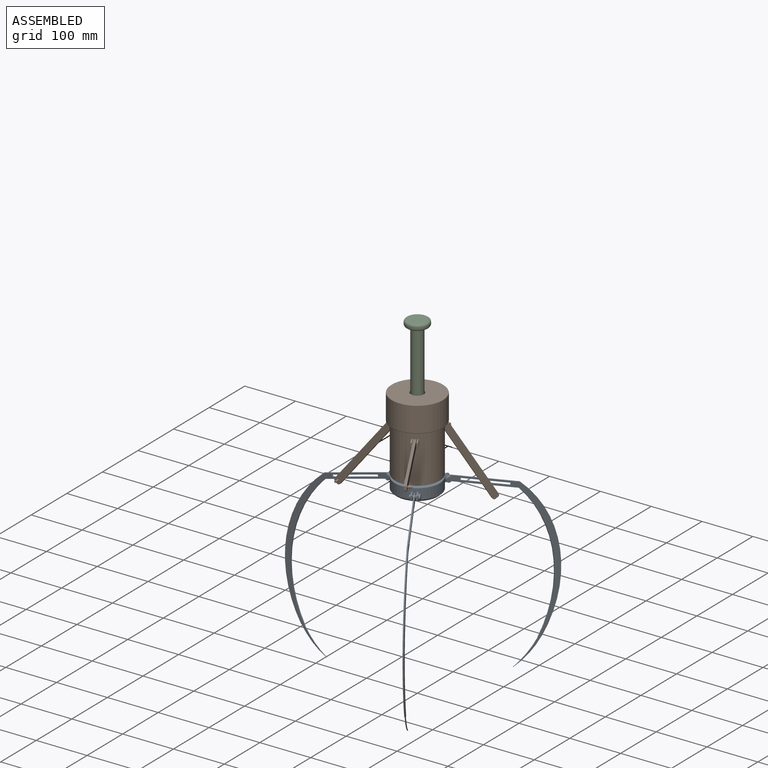
[diagram: assembled view]
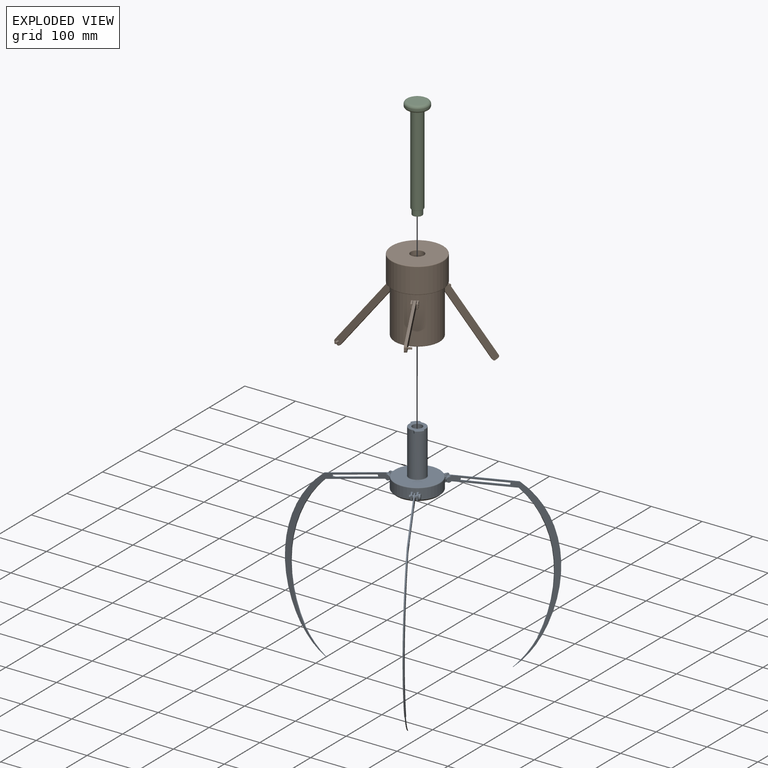
[diagram: exploded view]
GUIDED TOUR — MATED ASSEMBLY WITH SUBASSEMBLIES (Onshape document 1697e7c4b68ad2f61e49e5d9, AutoMate assembly 1697e7c4b68ad2f61e49e5d9_fa7799d7f39c444295d4dd53_c29609ae4eb9703df183e290_default)

This assembly has 15 component occurrences arranged in 3 top-level units: 1 individual components plus 2 subassemblies (S0, S1). The tour has two levels: first the top level, where each subassembly is treated as one rigid unit; then each subassembly is toured internally in its own section (nesting deeper than one subassembly level is flattened into its subassembly's section).

Components are labeled P0..P14 across the whole record; subassembly units are labeled S0..S1. A mate is a constraint between two units; its type names the relative motion it leaves free:
  FASTENED — locks the two components together rigidly (no relative motion),
  REVOLUTE — leaves rotation about the listed axis free (a hinge),
  SLIDER — leaves translation along the listed axis free.
Axis/direction vectors are unit vectors and 'through' points are millimeter coordinates, both in the assembly's world frame.

TOP-LEVEL MATES (between units; each subassembly's internal mates are listed in its own section)
  1. FASTENED "Fastened 1": P11 <-> S0, direction (0.000, 0.000, -1.000) through (0.00, 0.00, -21.27) mm
  2. SLIDER "Slider 1": S0 <-> S1, axis (0.000, 0.000, -1.000) through (0.00, 0.00, -53.98) mm

TOP-LEVEL ASSEMBLY ORDER
  1. S0 — the base component [order heuristic]
  2. S1 — core [order heuristic]
  3. P11 [order verified]
(P11 verified with a relaxed clearance tolerance: the source model stores slight part interference there.)
Order-tag legend:
  [order verified] — this step's position reverses a verified removal order: the component was checked to insert without passing through the ones already placed.
  [order heuristic] — the first 2 components form the assembly's core: parts whose collision-free extraction could not be verified, listed in mate-graph order.

Of the 15 component occurrences, 1 carries the full construction recipe — the FeatureScript program that regenerates the part's solid from scratch; the rest are supplied as boundary geometry only. Each toured unit is shown spotlighted twice — assembled, then exploded with a leader line back to its socket (green = recipe-attached component, orange = geometry-only, blue = subassembly unit; the rest desaturated gray).
NOTE — this tour is split across 2 documents so each fits a 32k-token context. This is document 1: the component sections continue in the remaining 1 document, each repeating the header above.
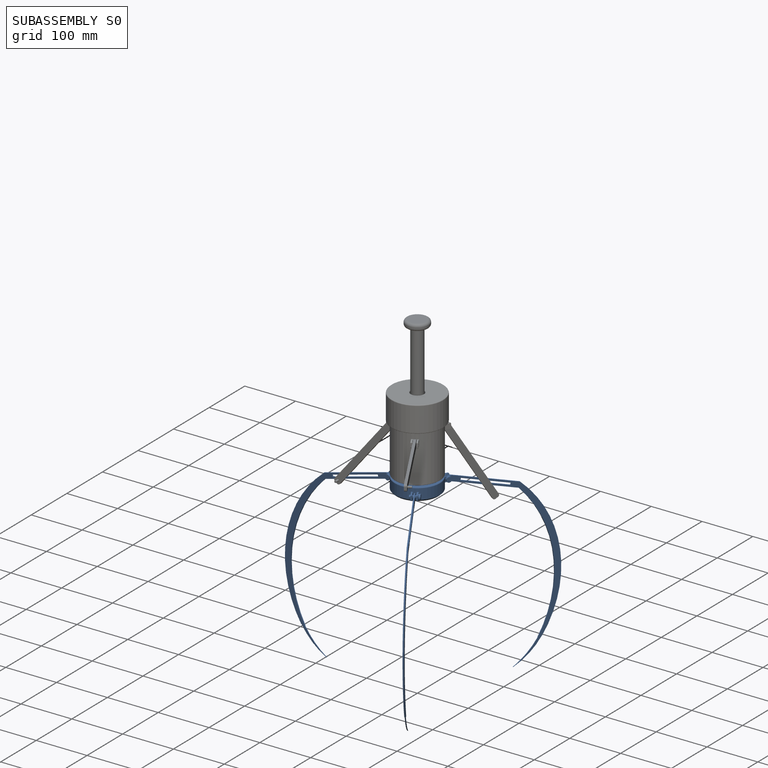
[diagram: subassembly S0 — assembled]
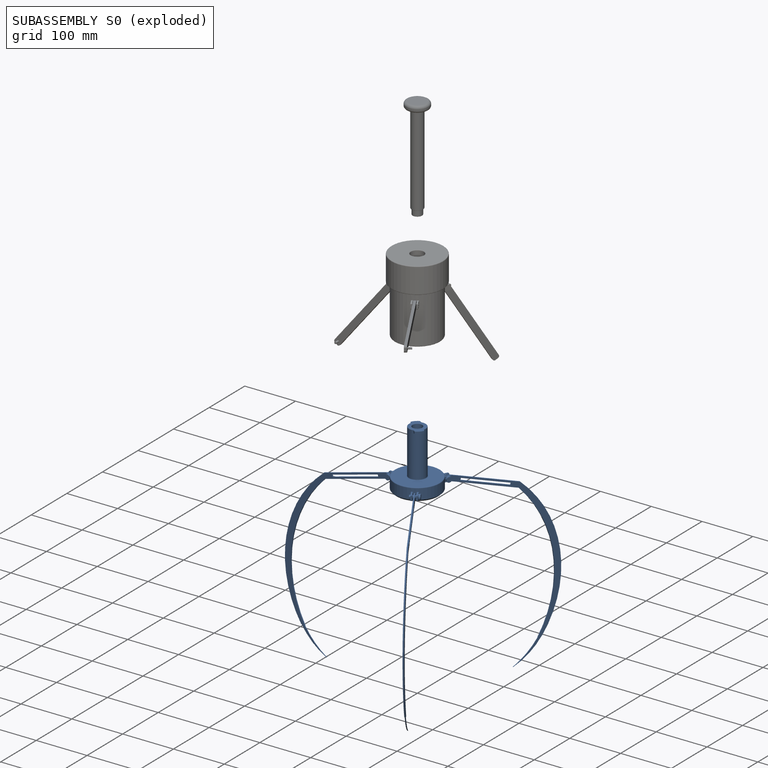
[diagram: subassembly S0 — exploded]
SUBASSEMBLY S0 — 7 components (P0, P2, P3, P4, P6, P8, P13), of which 0 recipe-attached; toured below.
Held by: FASTENED mate "Fastened 1" to P11; SLIDER mate "Slider 1" to S1.
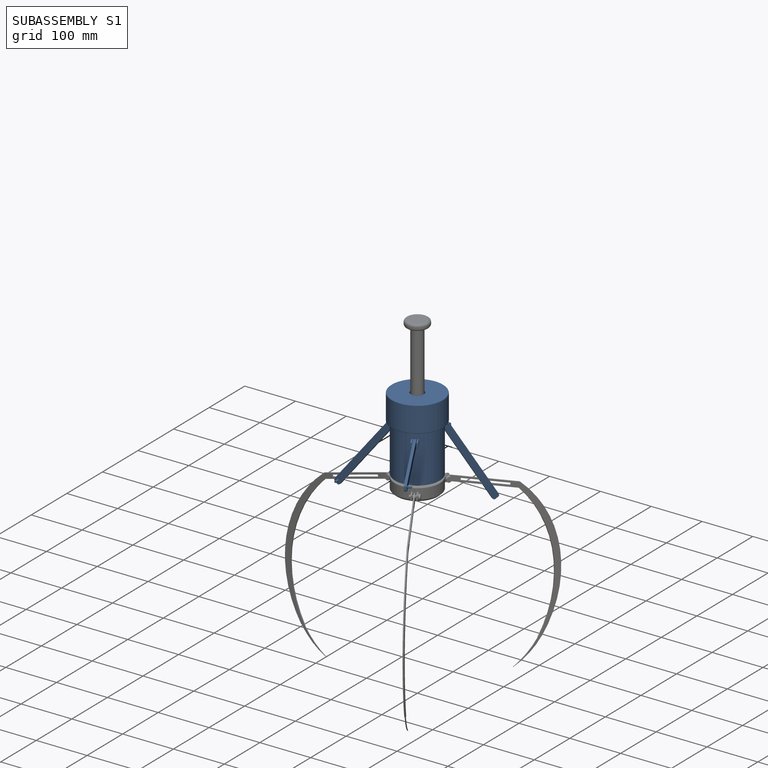
[diagram: subassembly S1 — assembled]
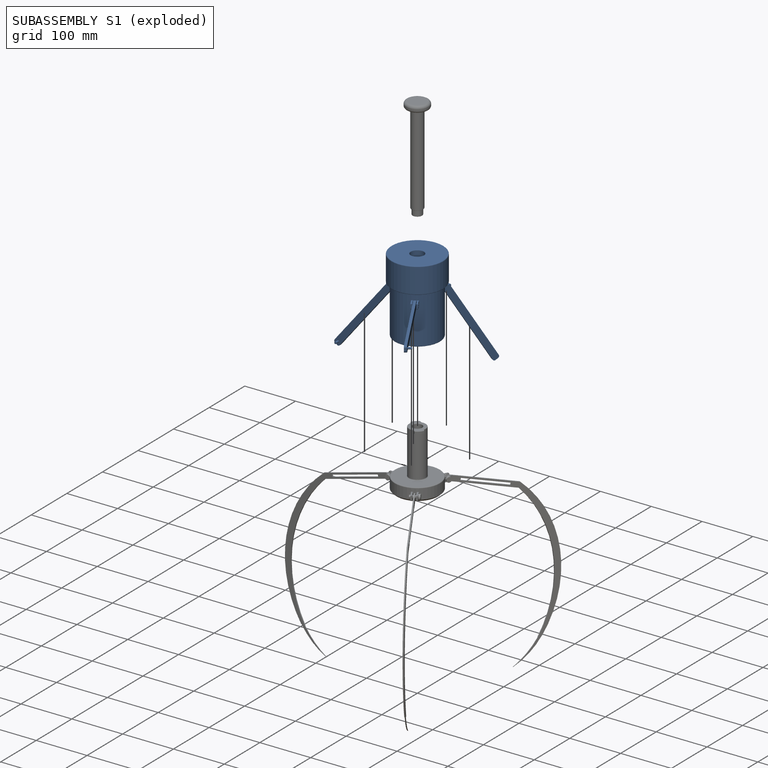
[diagram: subassembly S1 — exploded]
SUBASSEMBLY S1 — 7 components (P1, P5, P7, P9, P10, P12, P14), of which 0 recipe-attached; toured below.
Held by: SLIDER mate "Slider 1" to S0.
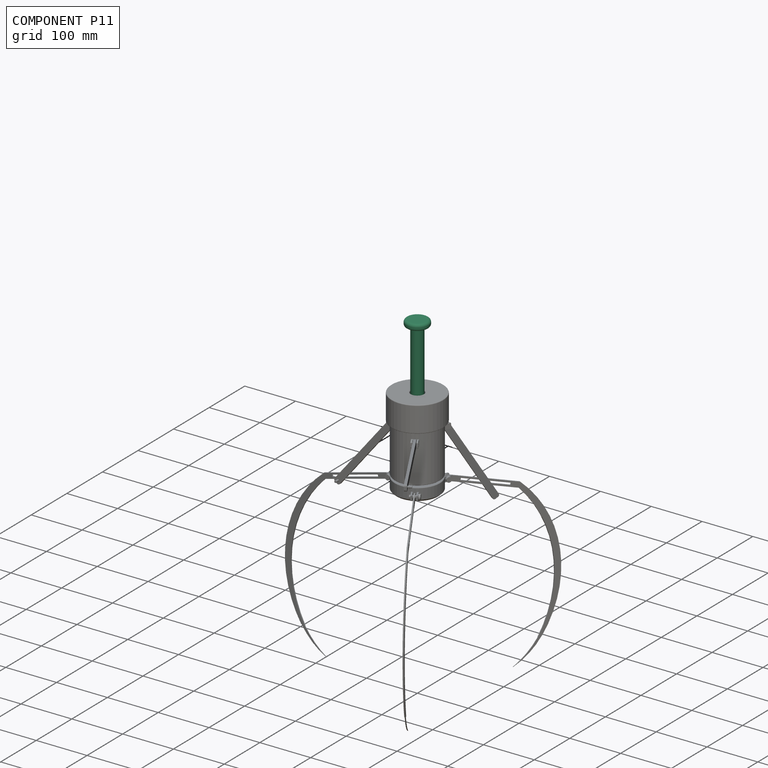
[diagram: component P11 — assembled]
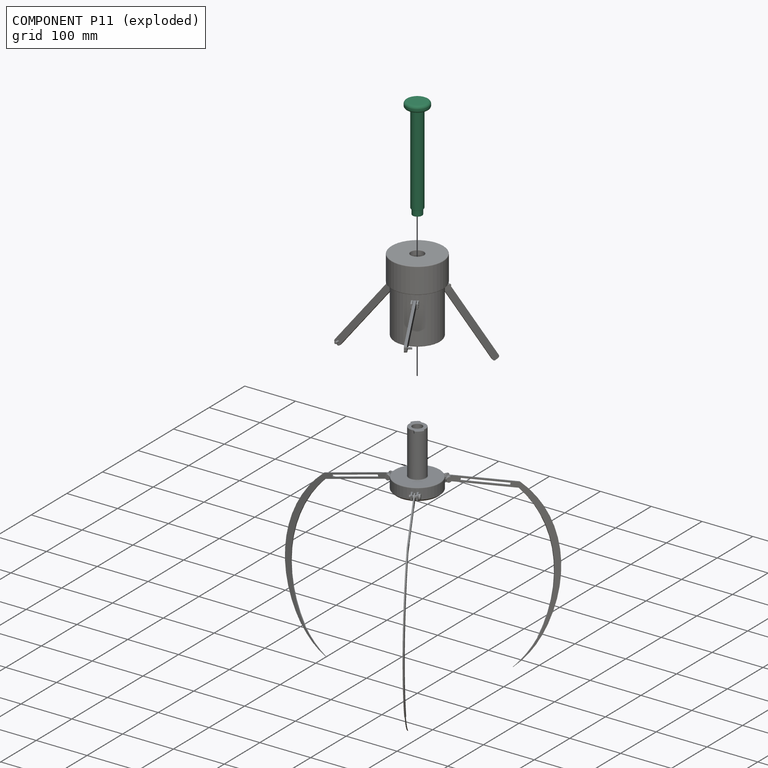
[diagram: component P11 — exploded]
COMPONENT P11 — recipe-attached (CADFS 00822589, mesh-verified: the recipe's output STEP matches this component's geometry to below the mesh-comparison resolution (tessellation chordal tolerance ~0.317 mm)).
Held by: FASTENED mate "Fastened 1" to P0.
Construction recipe (FeatureScript — the CAD program that rebuilds this solid; sketch coordinates are in the units given by the * unit suffixes, e.g. mm):

FeatureScript 1511;
import(path : "onshape/std/geometry.fs", version : "1511.0");
import(path : "onshape/std/common.fs", version : "1511.0");
const mm = millimeter;
const VERTEX = EntityType.VERTEX;
const EDGE = EntityType.EDGE;
const FACE = EntityType.FACE;
const BODY = EntityType.BODY;
function v(x, y){return vector(x, y);}
function OD(order){return orderDisambiguation(order);}
function OSD(set){return originalSetDisambiguation(set);}
function TD(topology){return topologyDisambiguation(topology);}
function TDD(query){return trueDependencyDisambiguation(query);}
function sQuery(a, b, c) {return sketchEntityQuery(a, b, c);}

annotation { "Feature Type Name" : "Feature", "Feature Type Description" : "" }
export const myFeature = defineFeature(function(context is Context, id is Id, definition is map)
    precondition{}
    {
        {
            var Q0;
            Q0=qCreatedBy(makeId("Top.planeOp"),FACE);
            var sketch = newSketch(context, id + "F0", { "sketchPlane" : qUnion([Q0])});
            skCircle(sketch, "E0", {"center": v(0, 0) * mm, "radius": 9.53 * mm});
            skSolve(sketch);
        }
        {
            var Q0;
            Q0 = qSketchRegion(id + "F0", true);
            extrude(context, id + "F1", {"entities" : qUnion([Q0]), "depth" : 11.43 * mm, "offsetDistance" : 25.4 * mm});
        }
        {
            var Q0;
            Q0=makeQuery(id+"F1.opExtrude","CAP_FACE",FACE,{"disambiguationData":[OSD([sQuery(id+"F0.wireOp",EDGE,"E0")])],"isStart":false});
            var sketch = newSketch(context, id + "F2", { "sketchPlane" : qUnion([Q0])});
            skCircle(sketch, "E1", {"center": v(0, 0) * mm, "radius": 11.43 * mm});
            skSolve(sketch);
        }
        {
            var Q0;
            Q0 = qSketchRegion(id + "F2", true);
            extrude(context, id + "F3", {"entities" : qUnion([Q0]), "operationType" : NewBodyOperationType.ADD, "depth" : 177.8 * mm, "offsetDistance" : 25.4 * mm});
        }
        {
            var Q0;
            Q0=makeQuery(id+"F3.opExtrude","CAP_FACE",FACE,{"disambiguationData":[OSD([sQuery(id+"F2.wireOp",EDGE,"E1")])],"isStart":false});
            var sketch = newSketch(context, id + "F4", { "sketchPlane" : qUnion([Q0])});
            skCircle(sketch, "E2", {"center": v(0, 0) * mm, "radius": 22.23 * mm});
            skSolve(sketch);
        }
        {
            var Q0;
            Q0 = qSketchRegion(id + "F4", true);
            extrude(context, id + "F5", {"entities" : qUnion([Q0]), "operationType" : NewBodyOperationType.ADD, "depth" : 12.7 * mm, "offsetDistance" : 25.4 * mm});
        }
        {
            var Q0;
            Q0=makeQuery(id+"F5.opExtrude","CAP_FACE",FACE,{"disambiguationData":[OSD([sQuery(id+"F4.wireOp",EDGE,"E2")])],"isStart":false});
            var Q1;
            Q1=makeQuery(id+"F5.opExtrude","CAP_EDGE",EDGE,{"disambiguationData":[OSD([sQuery(id+"F4.wireOp",EDGE,"E2")])],"isStart":true});
            fillet(context, id + "F6", {"entities" : qUnion([Q0, Q1]), "tangentPropagation" : true, "radius" : 5.08 * mm, "defaultsChanged" : false, "vertexSettings" : [], "allowEdgeOverflow" : false});
        }
        {
            var Q0;
            Q0=makeQuery(id+"F3.opExtrude","CAP_EDGE",EDGE,{"disambiguationData":[OSD([sQuery(id+"F2.wireOp",EDGE,"E1")])],"isStart":true});
            var Q1;
            Q1=makeQuery(id+"F1.opExtrude","CAP_EDGE",EDGE,{"disambiguationData":[OSD([sQuery(id+"F0.wireOp",EDGE,"E0")])],"isStart":true});
            fillet(context, id + "F7", {"entities" : qUnion([Q0, Q1]), "tangentPropagation" : true, "radius" : 0.64 * mm, "defaultsChanged" : true, "vertexSettings" : [], "allowEdgeOverflow" : false});
        }
    });
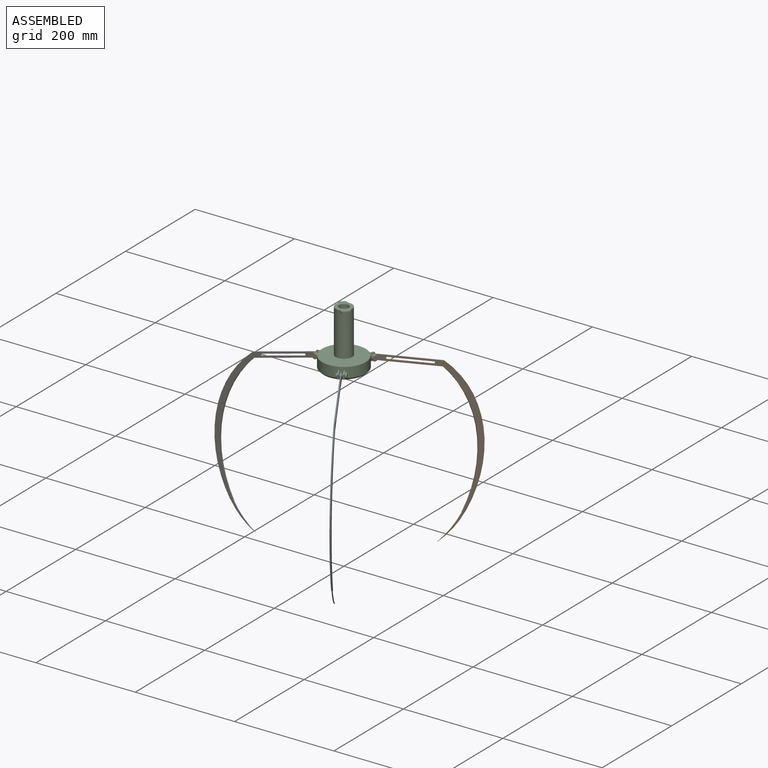
[diagram: subassembly S0 — assembled view]
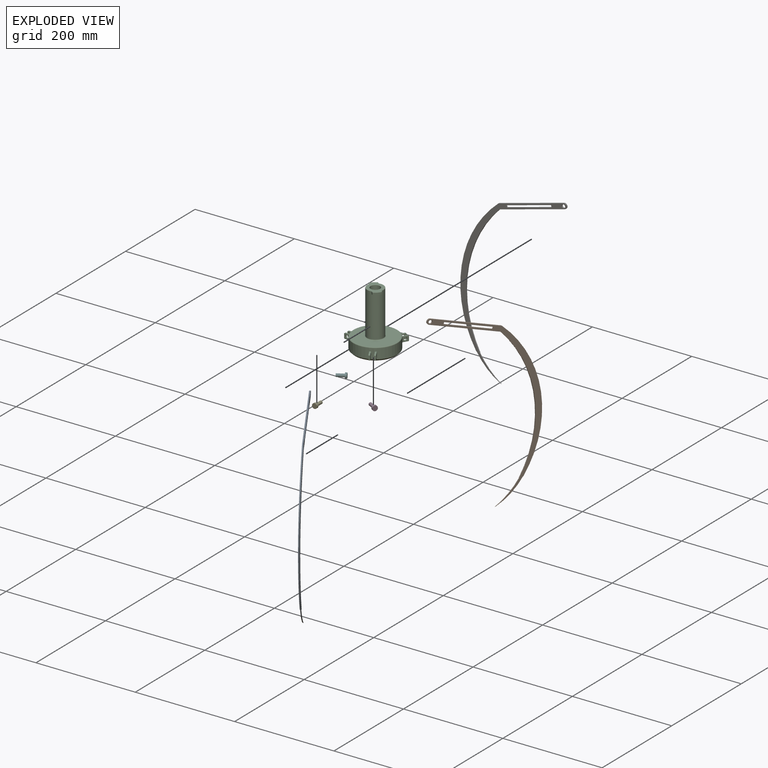
[diagram: subassembly S0 — exploded view]
SUBASSEMBLY S0 TOUR — 7 components, shown here in isolation at its own camera.

INTERNAL MATES
  1. FASTENED "Fastened 1": P6 <-> P3, direction (0.000, 1.000, 0.000) through (-52.07, 8.89, -111.44) mm
  2. FASTENED "Fastened 2": P4 <-> P3, direction (-0.866, 0.500, 0.000) through (18.34, 49.54, -111.44) mm
  3. FASTENED "Fastened 4": P8 <-> P3, direction (0.866, 0.500, 0.000) through (31.53, -41.92, -111.44) mm
  4. REVOLUTE "Revolute 1": P2 <-> P3, axis (-0.866, 0.500, 0.000) through (24.94, 45.73, -111.44) mm
  5. REVOLUTE "Revolute 3": P0 <-> P3, axis (0.866, 0.500, 0.000) through (27.13, -44.46, -111.44) mm
  6. REVOLUTE "Revolute 4": P13 <-> P3, axis (0.000, -1.000, 0.000) through (-52.07, -1.27, -111.44) mm
  7. FASTENED "Fastened 4": P8 <-> P3, direction (0.866, 0.500, 0.000) through (31.53, -41.92, -111.44) mm
  8. FASTENED "Fastened 1": P6 <-> P3, direction (0.000, 1.000, 0.000) through (-52.07, 8.89, -111.44) mm
  9. REVOLUTE "Revolute 1": P2 <-> P3, axis (-0.866, 0.500, 0.000) through (24.94, 45.73, -111.44) mm
  10. REVOLUTE "Revolute 4": P13 <-> P3, axis (0.000, -1.000, 0.000) through (-52.07, -1.27, -111.44) mm
  11. REVOLUTE "Revolute 3": P0 <-> P3, axis (0.866, 0.500, 0.000) through (27.13, -44.46, -111.44) mm
  12. FASTENED "Fastened 2": P4 <-> P3, direction (-0.866, 0.500, 0.000) through (18.34, 49.54, -111.44) mm

ASSEMBLY ORDER (within the subassembly)
  1. P8 — the base component [order verified]
  2. P3 [order verified]
  3. P4 [order verified]
  4. P0 [order verified]
  5. P2 [order verified]
  6. P6 [order verified]
  7. P13 [order verified]
(P3, P4 verified with a relaxed clearance tolerance: the source model stores slight part interference there.)
Order-tag legend:
  [order verified] — this step's position reverses a verified removal order: the component was checked to insert without passing through the ones already placed.
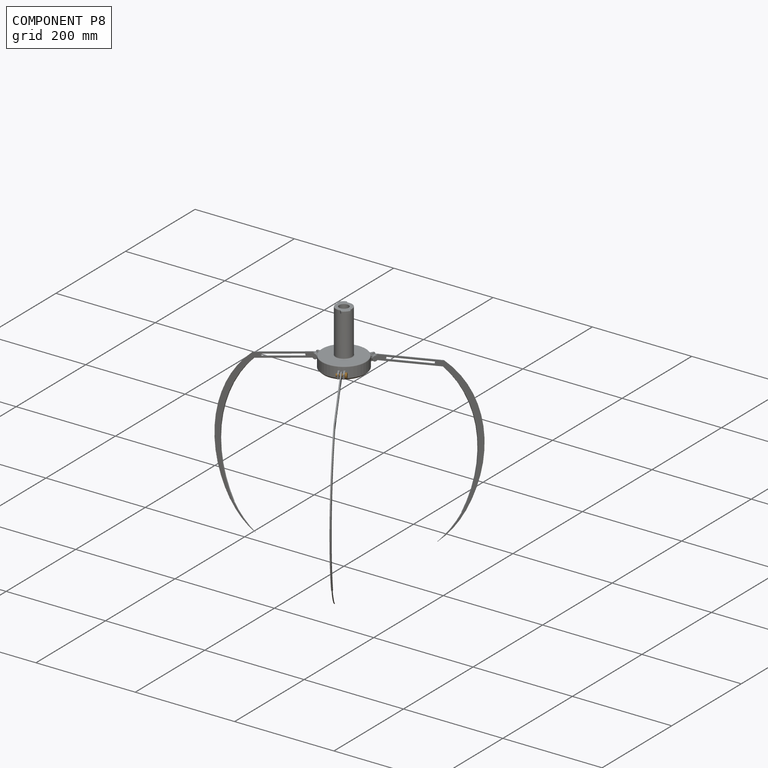
[diagram: component P8 — assembled]
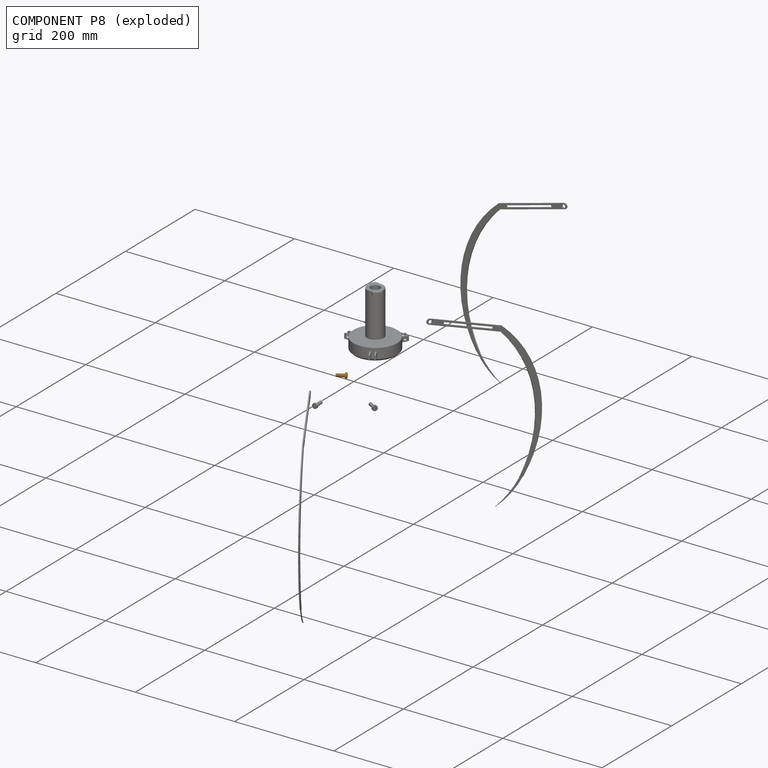
[diagram: component P8 — exploded]
COMPONENT P8 — geometry summary (no construction recipe available for this part):
  bounding box: 19.1 x 10.2 x 10.2 mm
  B-rep topology: 1 solid, 5 faces, 12 edges
  volume: 754 mm^3 (38% of its bounding box)
  symmetry: revolution-symmetric about the y axis through its bounding-box center; mirror-symmetric across its x mid-plane, z mid-plane
Held by: FASTENED mate "Fastened 4" to P3; FASTENED mate "Fastened 4" to P3.
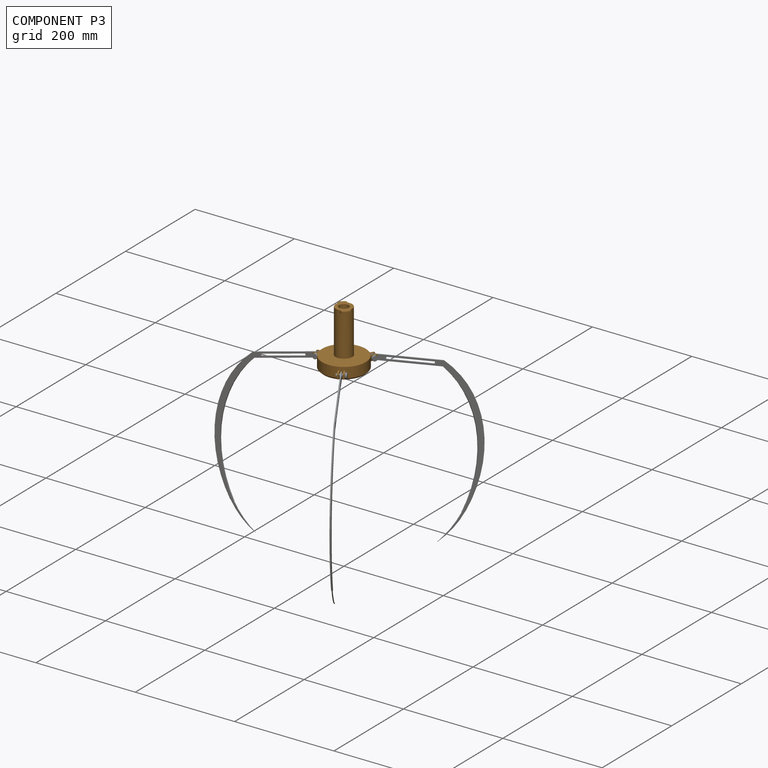
[diagram: component P3 — assembled]
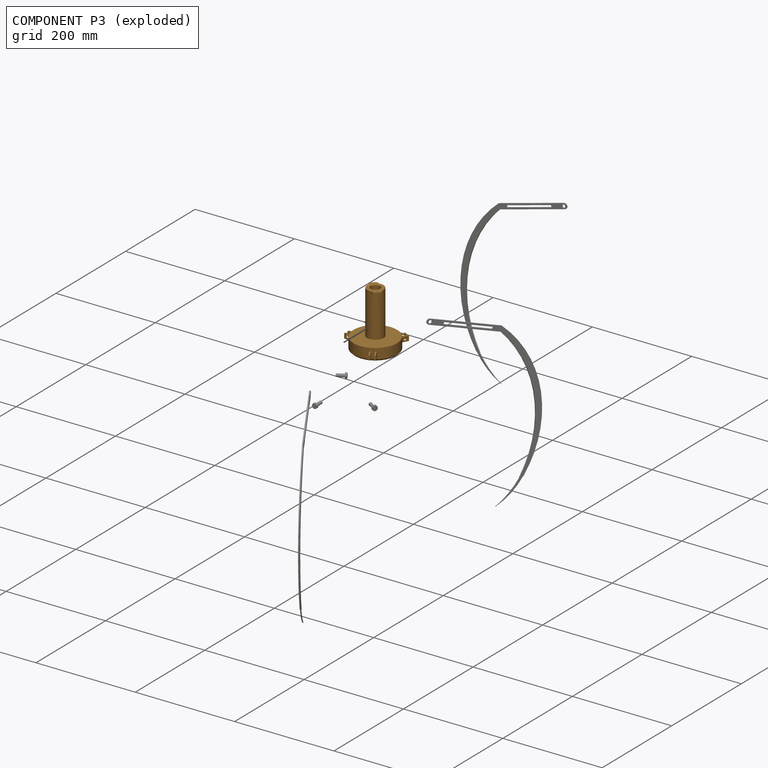
[diagram: component P3 — exploded]
COMPONENT P3 — geometry summary (no construction recipe available for this part):
  bounding box: 114.3 x 107.5 x 106.5 mm
  B-rep topology: 1 solid, 75 faces, 366 edges
  volume: 230935 mm^3 (18% of its bounding box)
Held by: FASTENED mate "Fastened 1" to P6; FASTENED mate "Fastened 2" to P4; FASTENED mate "Fastened 4" to P8; REVOLUTE mate "Revolute 1" to P2; REVOLUTE mate "Revolute 3" to P0; REVOLUTE mate "Revolute 4" to P13; FASTENED mate "Fastened 4" to P8; FASTENED mate "Fastened 1" to P6; REVOLUTE mate "Revolute 1" to P2; REVOLUTE mate "Revolute 4" to P13; REVOLUTE mate "Revolute 3" to P0; FASTENED mate "Fastened 2" to P4.
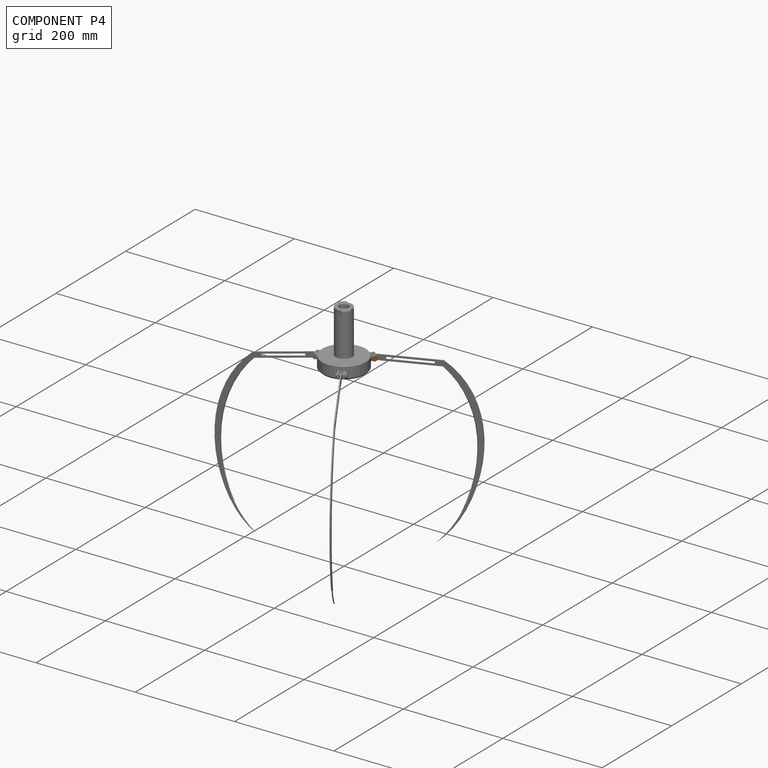
[diagram: component P4 — assembled]
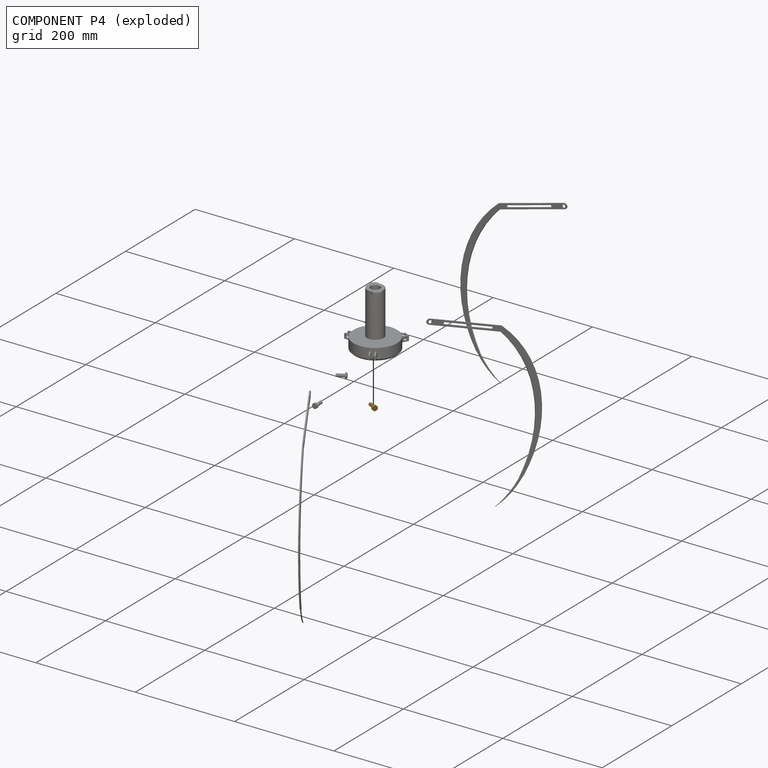
[diagram: component P4 — exploded]
COMPONENT P4 — geometry summary (no construction recipe available for this part):
  bounding box: 19.1 x 10.2 x 10.2 mm
  B-rep topology: 1 solid, 5 faces, 12 edges
  volume: 754 mm^3 (38% of its bounding box)
  symmetry: revolution-symmetric about the y axis through its bounding-box center; mirror-symmetric across its x mid-plane, z mid-plane
Held by: FASTENED mate "Fastened 2" to P3; FASTENED mate "Fastened 2" to P3.
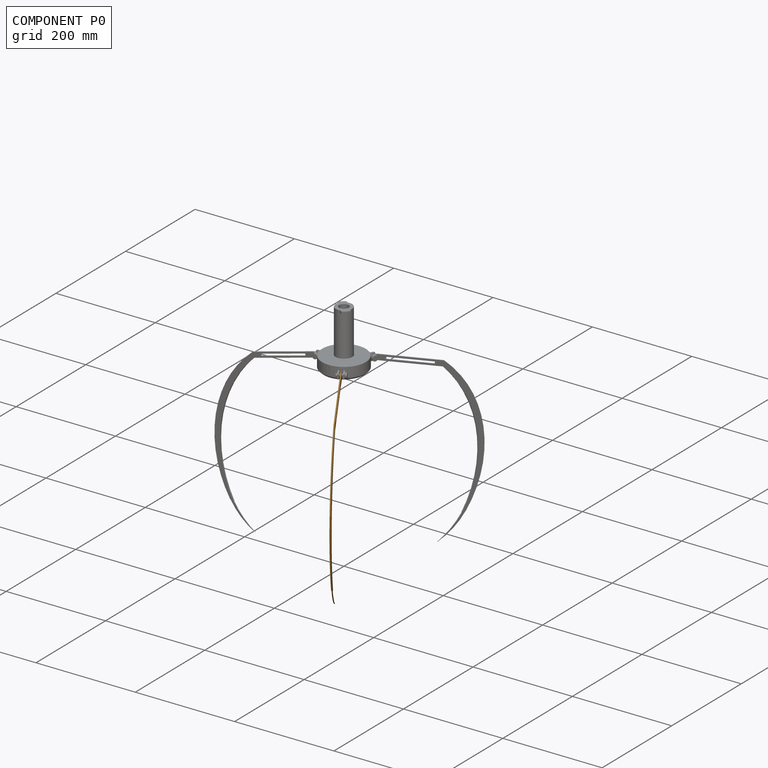
[diagram: component P0 — assembled]
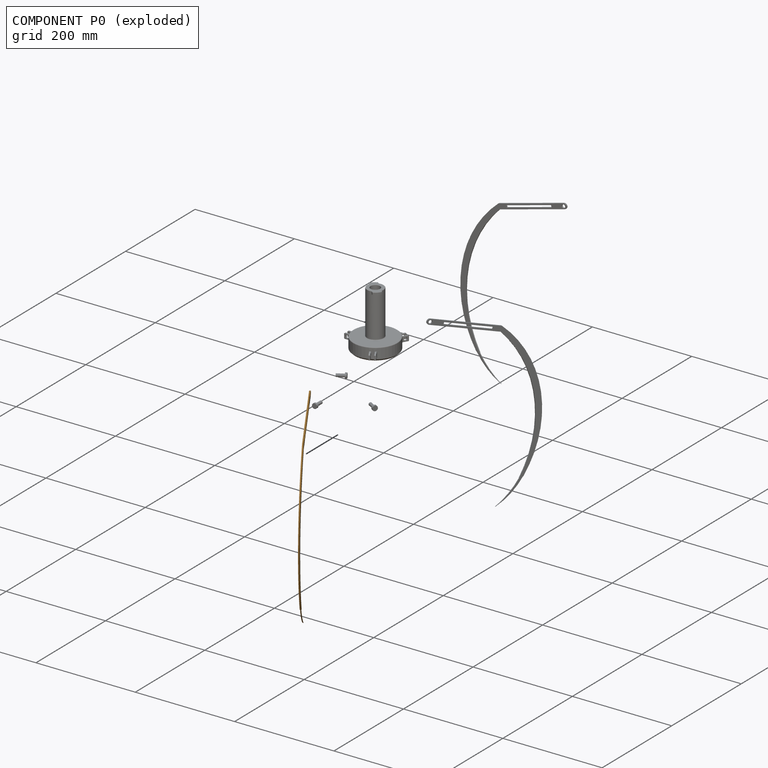
[diagram: component P0 — exploded]
COMPONENT P0 — geometry summary (no construction recipe available for this part):
  bounding box: 363.1 x 214.1 x 2.5 mm
  B-rep topology: 1 solid, 20 faces, 100 edges
  volume: 11045 mm^3 (6% of its bounding box)
  symmetry: mirror-symmetric across its y mid-plane
Held by: REVOLUTE mate "Revolute 3" to P3; REVOLUTE mate "Revolute 3" to P3.
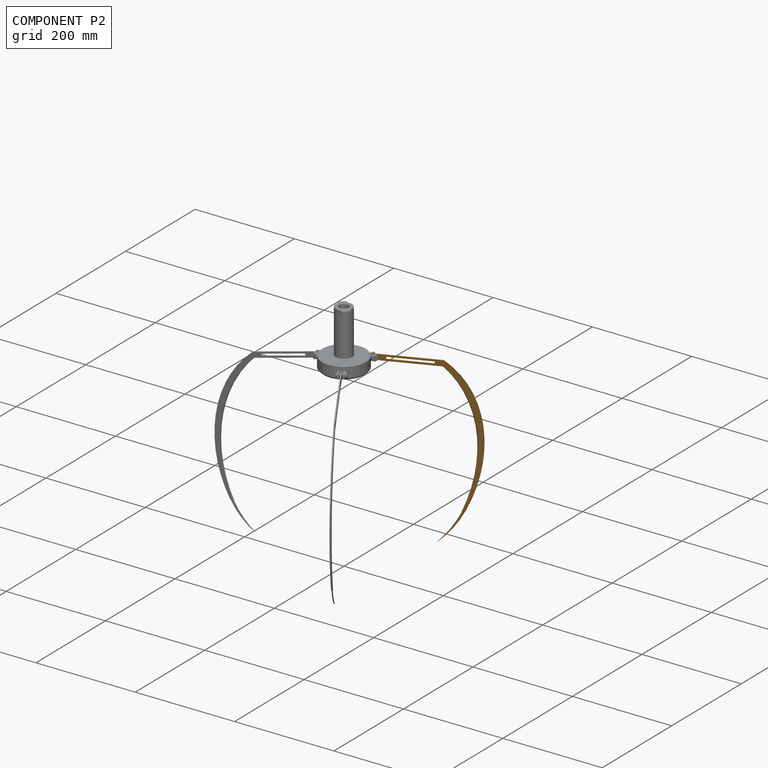
[diagram: component P2 — assembled]
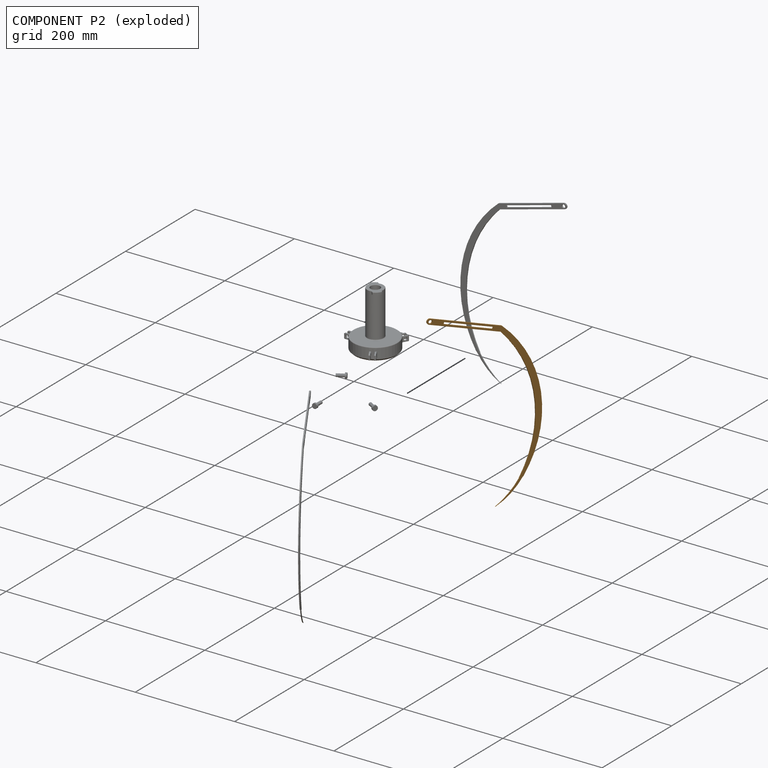
[diagram: component P2 — exploded]
COMPONENT P2 — geometry summary (no construction recipe available for this part):
  bounding box: 363.1 x 214.1 x 2.5 mm
  B-rep topology: 1 solid, 20 faces, 100 edges
  volume: 11045 mm^3 (6% of its bounding box)
  symmetry: mirror-symmetric across its y mid-plane
Held by: REVOLUTE mate "Revolute 1" to P3; REVOLUTE mate "Revolute 1" to P3.
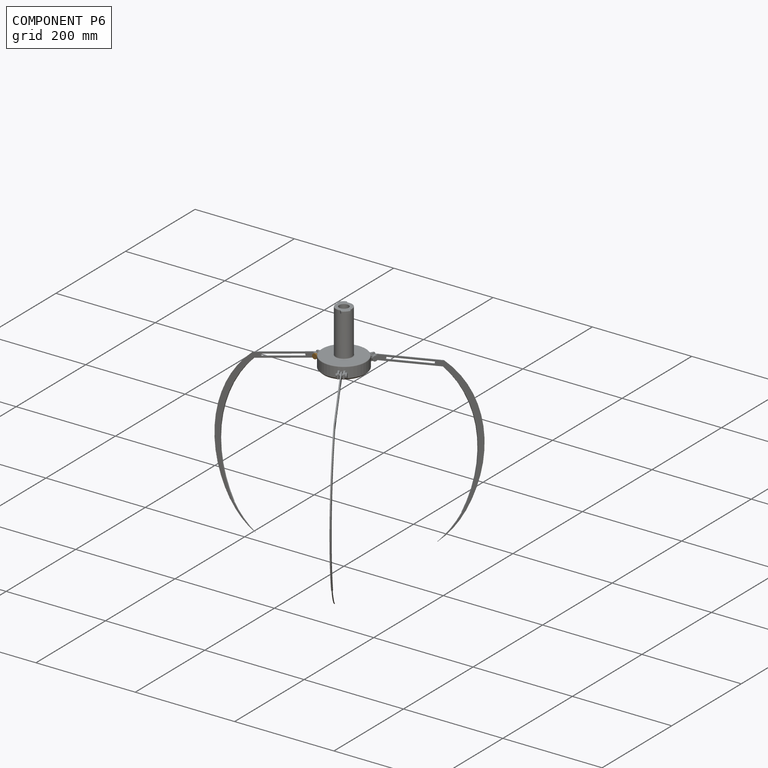
[diagram: component P6 — assembled]
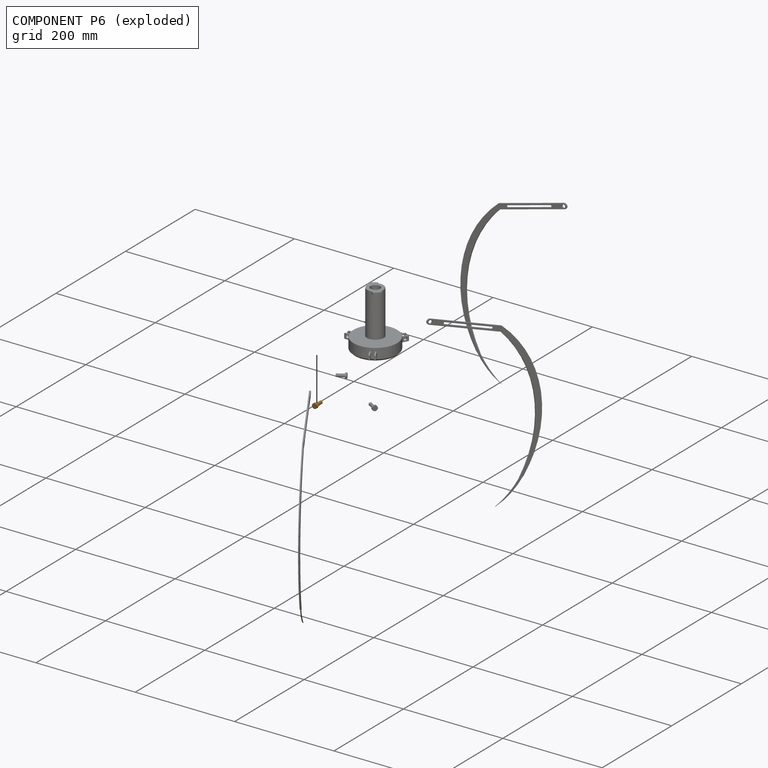
[diagram: component P6 — exploded]
COMPONENT P6 — geometry summary (no construction recipe available for this part):
  bounding box: 19.1 x 10.2 x 10.2 mm
  B-rep topology: 1 solid, 5 faces, 12 edges
  volume: 754 mm^3 (38% of its bounding box)
  symmetry: revolution-symmetric about the y axis through its bounding-box center; mirror-symmetric across its x mid-plane, z mid-plane
Held by: FASTENED mate "Fastened 1" to P3; FASTENED mate "Fastened 1" to P3.
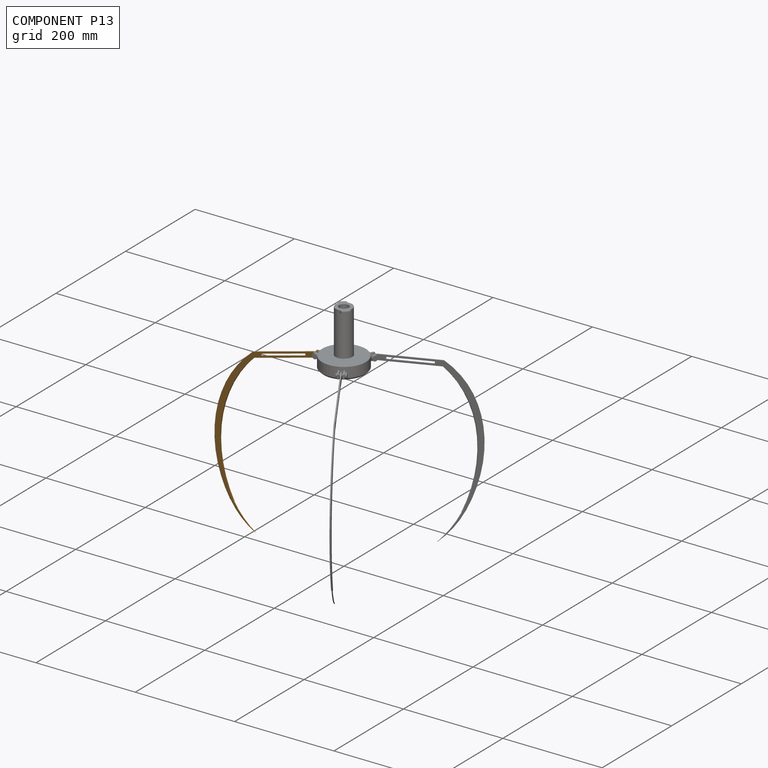
[diagram: component P13 — assembled]
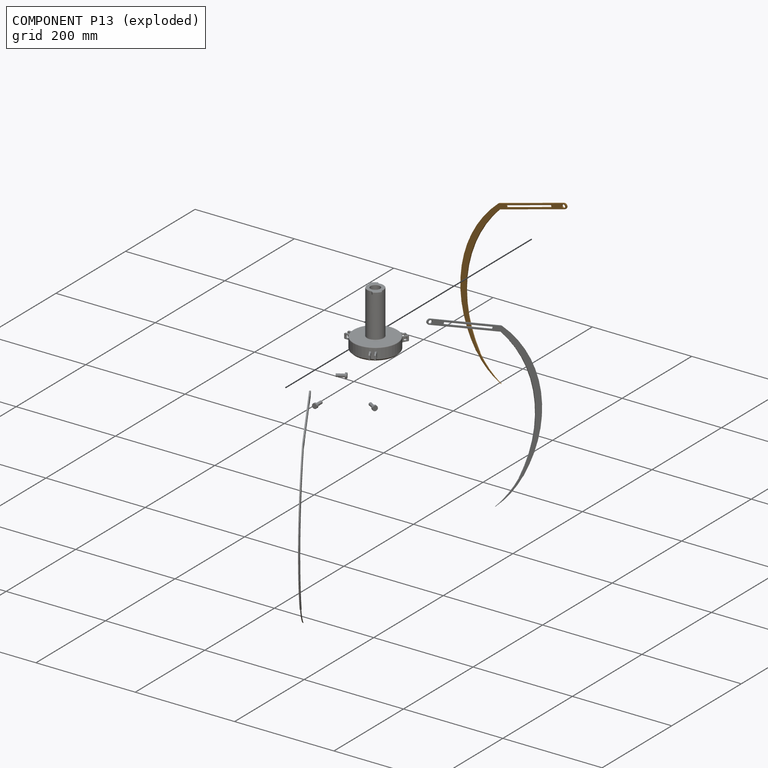
[diagram: component P13 — exploded]
COMPONENT P13 — geometry summary (no construction recipe available for this part):
  bounding box: 363.1 x 214.1 x 2.5 mm
  B-rep topology: 1 solid, 20 faces, 100 edges
  volume: 11045 mm^3 (6% of its bounding box)
  symmetry: mirror-symmetric across its y mid-plane
Held by: REVOLUTE mate "Revolute 4" to P3; REVOLUTE mate "Revolute 4" to P3.
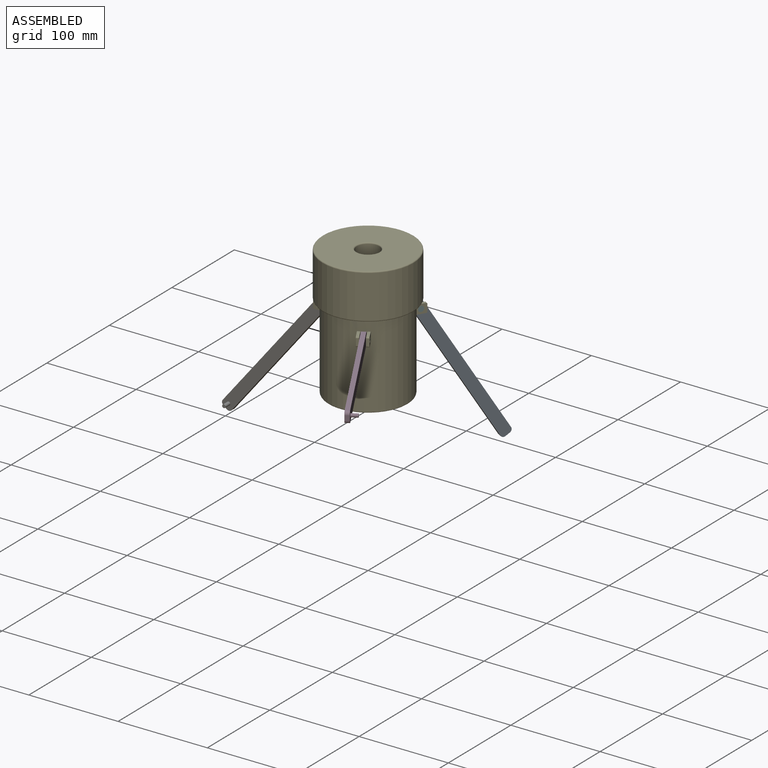
[diagram: subassembly S1 — assembled view]
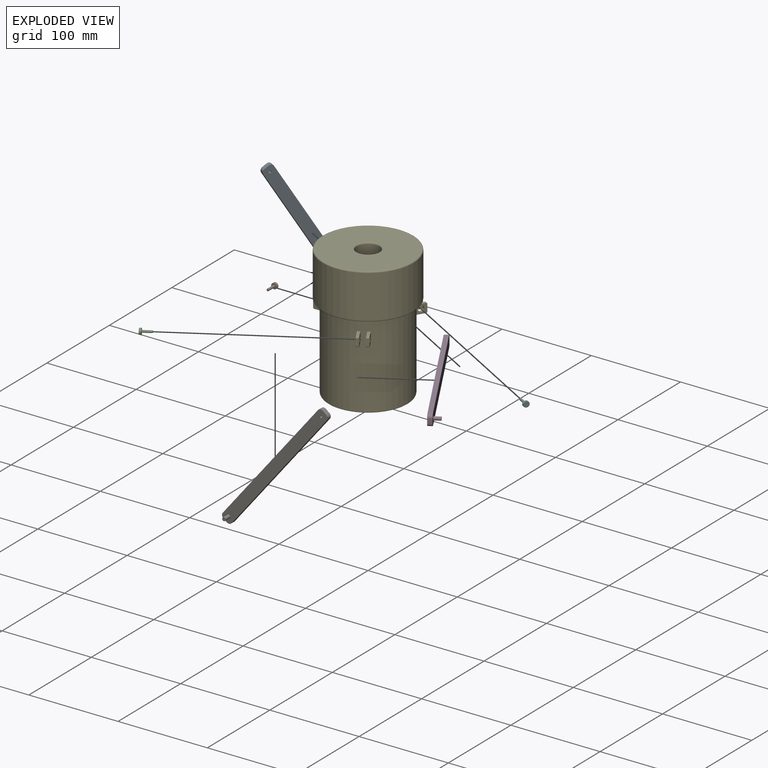
[diagram: subassembly S1 — exploded view]
SUBASSEMBLY S1 TOUR — 7 components, shown here in isolation at its own camera.

INTERNAL MATES
  1. FASTENED "Pin2": P12 <-> P10, direction (0.866, -0.500, 0.000) through (30.90, 40.82, -17.78) mm
  2. FASTENED "Pin3": P5 <-> P10, direction (0.000, 1.000, 0.000) through (-50.80, 6.35, -17.78) mm
  3. FASTENED "Pin1": P7 <-> P10, direction (-0.866, -0.500, 0.000) through (19.90, -47.17, -17.78) mm
  4. REVOLUTE "Arm1": P9 <-> P10, axis (0.866, 0.500, 0.000) through (27.65, -42.56, -17.78) mm
  5. REVOLUTE "Arm3": P14 <-> P10, axis (0.000, -1.000, 0.000) through (-50.80, -2.67, -17.78) mm
  6. REVOLUTE "Arm2": P1 <-> P10, axis (-0.866, 0.500, 0.000) through (23.09, 45.33, -17.78) mm
  7. FASTENED "Pin3": P5 <-> P10, direction (0.000, 1.000, 0.000) through (-50.80, 6.35, -17.78) mm
  8. FASTENED "Pin2": P12 <-> P10, direction (0.866, -0.500, 0.000) through (30.90, 40.82, -17.78) mm
  9. REVOLUTE "Arm1": P9 <-> P10, axis (0.866, 0.500, 0.000) through (27.65, -42.56, -17.78) mm
  10. REVOLUTE "Arm3": P14 <-> P10, axis (0.000, -1.000, 0.000) through (-50.80, -2.67, -17.78) mm
  11. REVOLUTE "Arm2": P1 <-> P10, axis (-0.866, 0.500, 0.000) through (23.09, 45.33, -17.78) mm
  12. FASTENED "Pin1": P7 <-> P10, direction (-0.866, -0.500, 0.000) through (19.90, -47.17, -17.78) mm

ASSEMBLY ORDER (within the subassembly)
  1. P10 — the base component [order verified]
  2. P7 [order verified]
  3. P9 [order verified]
  4. P12 [order verified]
  5. P1 [order verified]
  6. P14 [order verified]
  7. P5 [order verified]
(P9 verified with a relaxed clearance tolerance: the source model stores slight part interference there.)
Order-tag legend:
  [order verified] — this step's position reverses a verified removal order: the component was checked to insert without passing through the ones already placed.
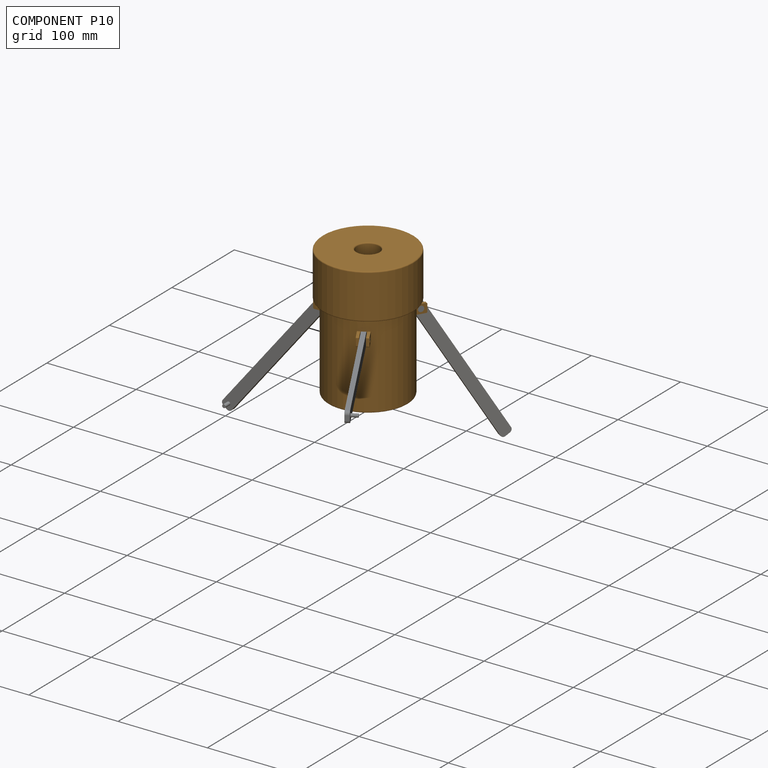
[diagram: component P10 — assembled]
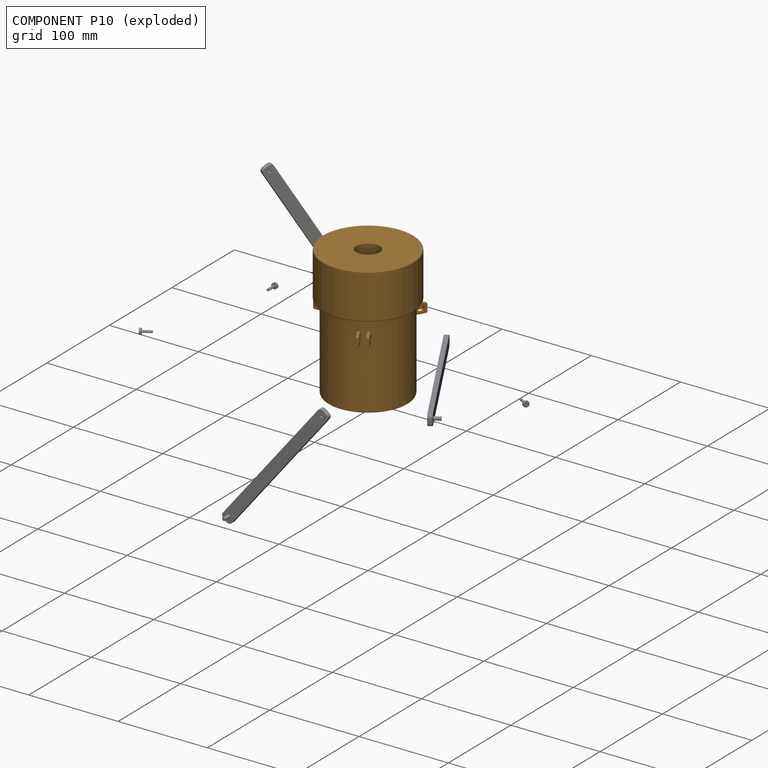
[diagram: component P10 — exploded]
COMPONENT P10 — geometry summary (no construction recipe available for this part):
  bounding box: 146.1 x 112.1 x 110.0 mm
  B-rep topology: 1 solid, 69 faces, 344 edges
  volume: 856416 mm^3 (48% of its bounding box)
Held by: FASTENED mate "Pin2" to P12; FASTENED mate "Pin3" to P5; FASTENED mate "Pin1" to P7; REVOLUTE mate "Arm1" to P9; REVOLUTE mate "Arm3" to P14; REVOLUTE mate "Arm2" to P1; FASTENED mate "Pin3" to P5; FASTENED mate "Pin2" to P12; REVOLUTE mate "Arm1" to P9; REVOLUTE mate "Arm3" to P14; REVOLUTE mate "Arm2" to P1; FASTENED mate "Pin1" to P7.
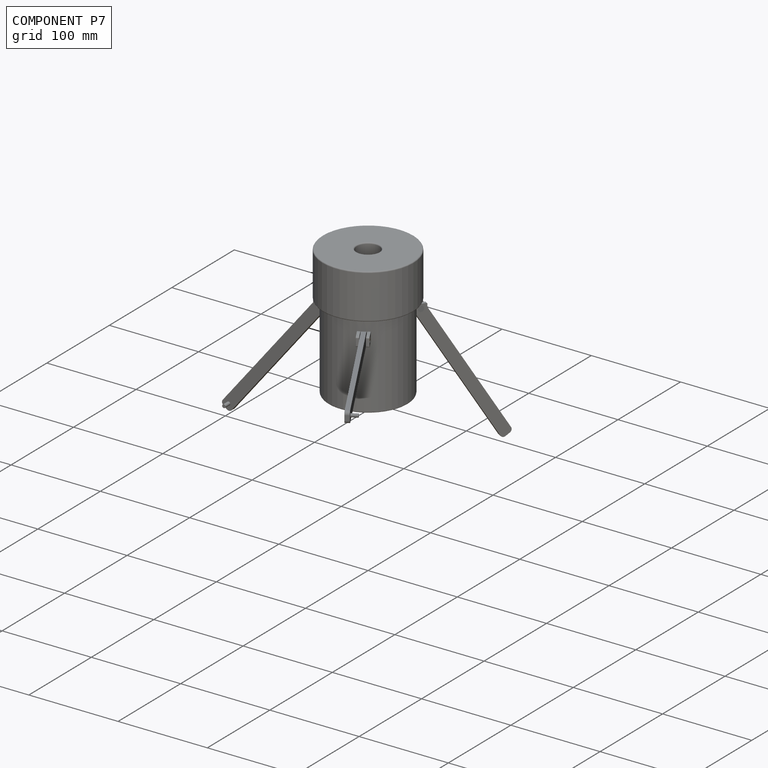
[diagram: component P7 — assembled]
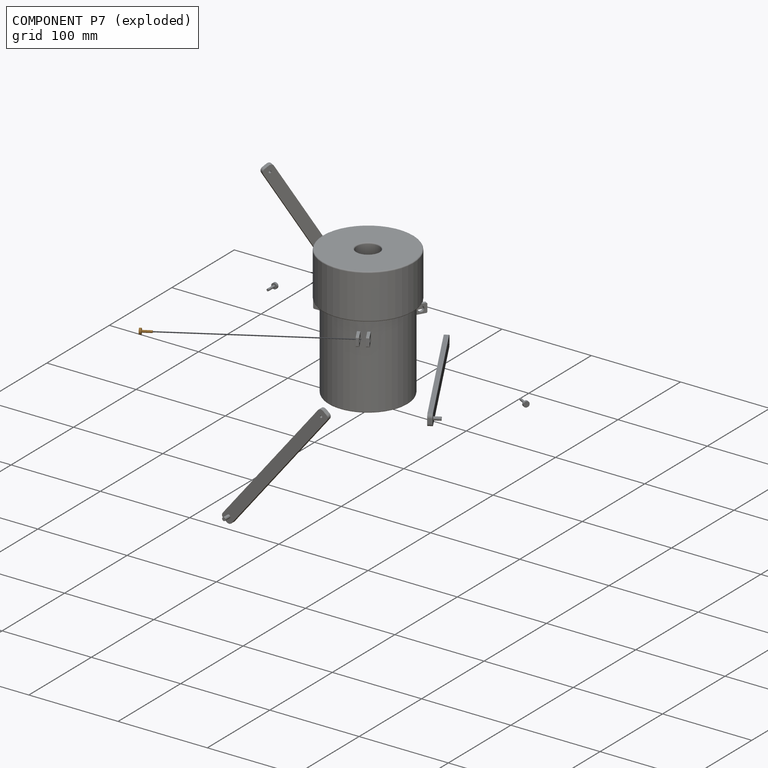
[diagram: component P7 — exploded]
COMPONENT P7 — geometry summary (no construction recipe available for this part):
  bounding box: 12.7 x 6.4 x 6.4 mm
  B-rep topology: 1 solid, 5 faces, 12 edges
  volume: 132 mm^3 (26% of its bounding box)
  symmetry: revolution-symmetric about the x axis through its bounding-box center; mirror-symmetric across its y mid-plane, z mid-plane
Held by: FASTENED mate "Pin1" to P10; FASTENED mate "Pin1" to P10.
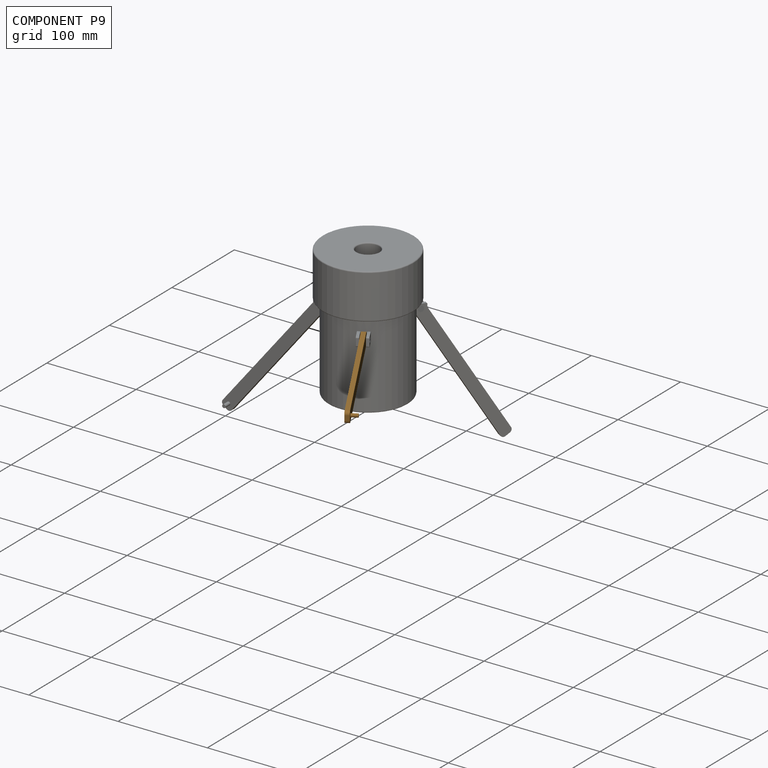
[diagram: component P9 — assembled]
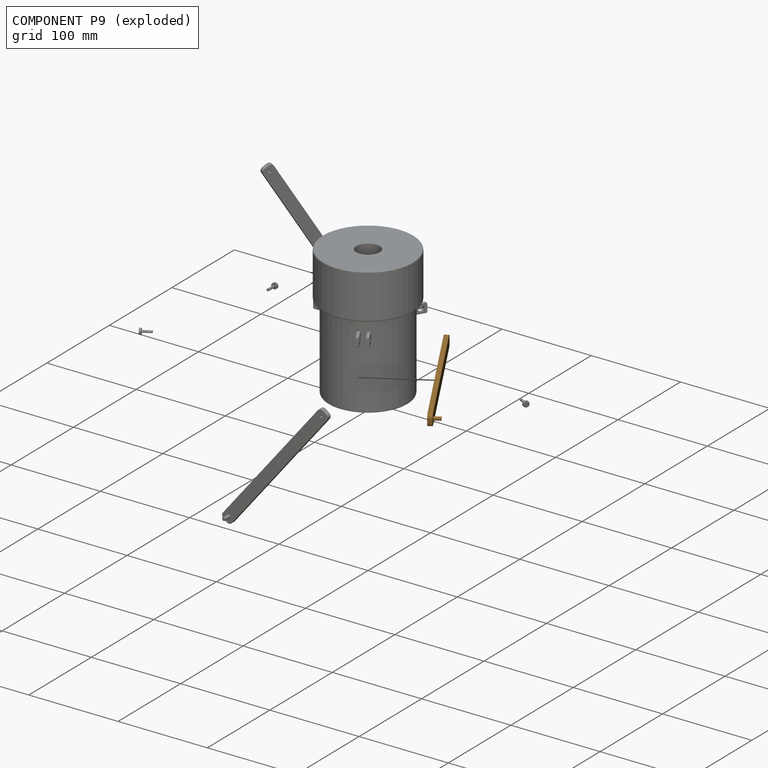
[diagram: component P9 — exploded]
COMPONENT P9 — geometry summary (no construction recipe available for this part):
  bounding box: 177.8 x 12.7 x 12.7 mm
  B-rep topology: 1 solid, 13 faces, 60 edges
  volume: 11469 mm^3 (40% of its bounding box)
  symmetry: mirror-symmetric across its z mid-plane
Held by: REVOLUTE mate "Arm1" to P10; REVOLUTE mate "Arm1" to P10.
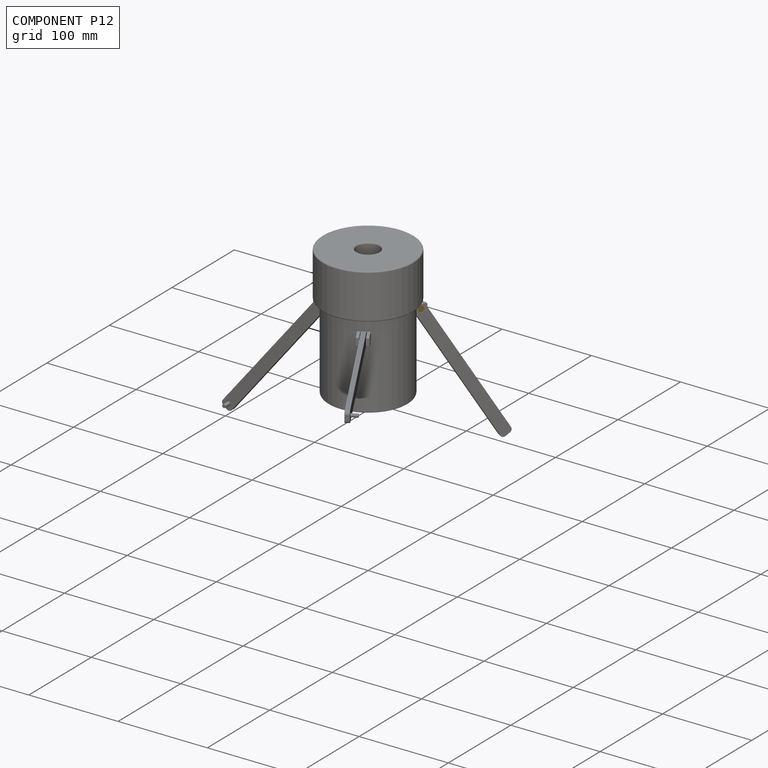
[diagram: component P12 — assembled]
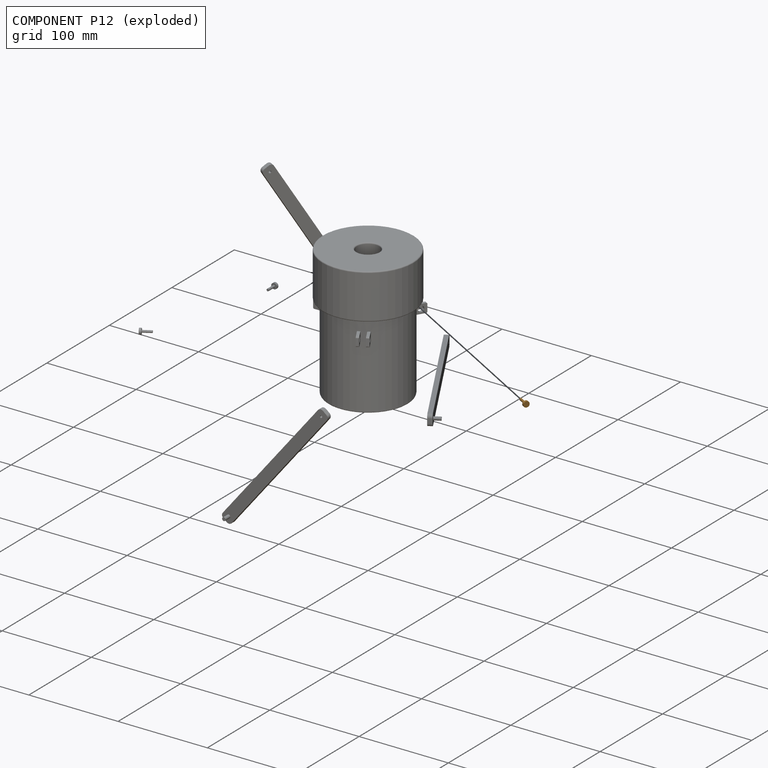
[diagram: component P12 — exploded]
COMPONENT P12 — geometry summary (no construction recipe available for this part):
  bounding box: 12.7 x 6.4 x 6.4 mm
  B-rep topology: 1 solid, 5 faces, 12 edges
  volume: 132 mm^3 (26% of its bounding box)
  symmetry: revolution-symmetric about the x axis through its bounding-box center; mirror-symmetric across its y mid-plane, z mid-plane
Held by: FASTENED mate "Pin2" to P10; FASTENED mate "Pin2" to P10.
